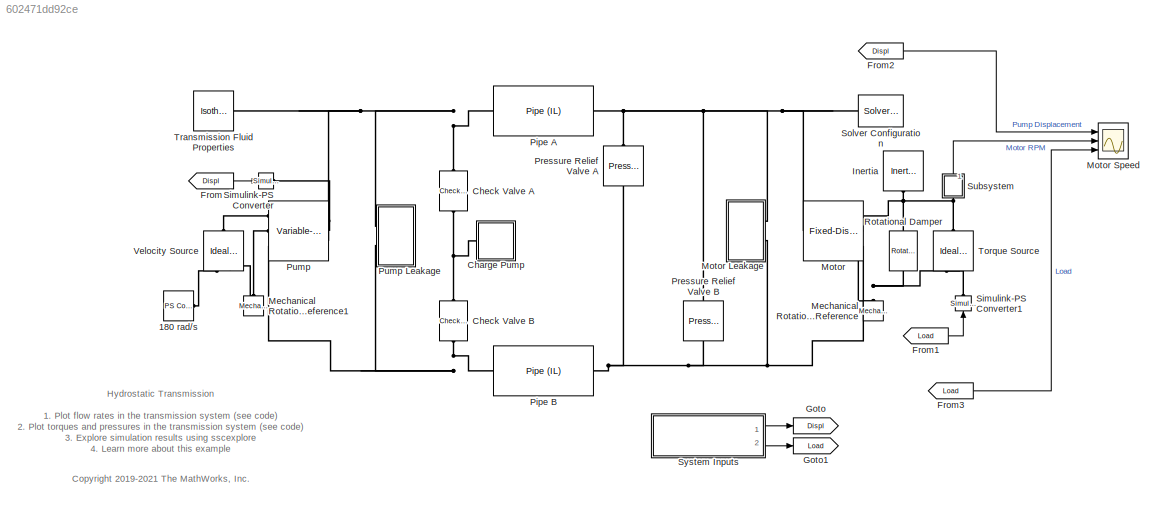
MODEL slx_602471dd92ce
KIND model
CONFIG AbsTol = 1e-3
CONFIG EnableMultiTasking = off
CONFIG FixedStep = auto
CONFIG MaxStep = auto
CONFIG MinStep = auto
CONFIG RelTol = 1e-3
CONFIG SampleTimeConstraint = Unconstrained
CONFIG SolverName = VariableStepAuto
CONFIG StartTime = 0.0
CONFIG StopTime = 30
BLOCK [Reference] 180 rad//s  REF=fl_lib/Physical Signals/Sources/PS Constant
  Ports = [0, 0, 0, 0, 0, 0, 1]
  SourceBlock = fl_lib/Physical Signals/Sources/PS Constant
  SourceProductBaseCode = PW,SS,VE
  SourceType = PS Constant
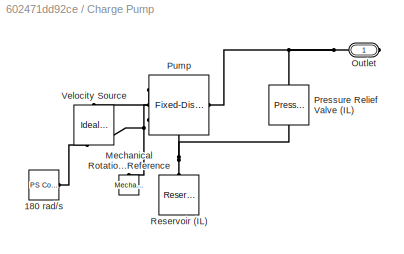
BLOCK [SubSystem] Charge Pump
  Ports = [0, 0, 0, 0, 0, 0, 1]
  RequestExecContextInheritance = off
  Tag = PublishSubsystem
BLOCK [Reference] Charge Pump/180 rad//s  REF=fl_lib/Physical Signals/Sources/PS Constant
  Ports = [0, 0, 0, 0, 0, 0, 1]
  SourceBlock = fl_lib/Physical Signals/Sources/PS Constant
  SourceProductBaseCode = PW,SS,VE
  SourceType = PS Constant
BLOCK [Reference] Charge Pump/Mechanical Rotational Reference  REF=fl_lib/Mechanical/Rotational Elements/Mechanical
Rotational Reference
  NameLocation = right
  Ports = [0, 0, 0, 0, 0, 1]
  SourceBlock = fl_lib/Mechanical/Rotational Elements/Mechanical\nRotational Reference
  SourceProductBaseCode = PW,SS,VE
  SourceType = Mechanical\nRotational Reference
BLOCK [PMIOPort] Charge Pump/Outlet
  Side = Right
BLOCK [Reference] Charge Pump/Pressure Relief Valve (IL)  REF=SimscapeFluids_lib/Isothermal Liquid/Valves & Orifices/Pressure Control
Valves/Pressure Relief
Valve (IL)
  AttributesFormatString = %<p_set_differential> %<p_set_differential_unit>
  NameLocation = right
  Ports = [0, 0, 0, 0, 0, 1, 1]
  SourceBlock = SimscapeFluids_lib/Isothermal Liquid/Valves & Orifices/Pressure Control\nValves/Pressure Relief\nValve (IL)
  SourceProductBaseCode = SH
  SourceType = Pressure Relief\nValve (IL)
BLOCK [Reference] Charge Pump/Pump  REF=SimscapeFluids_lib/Isothermal Liquid/Pumps & Motors/Fixed-Displacement
Pump (IL)
  NameLocation = right
  Ports = [0, 0, 0, 0, 0, 1, 3]
  SourceBlock = SimscapeFluids_lib/Isothermal Liquid/Pumps & Motors/Fixed-Displacement\nPump (IL)
  SourceProductBaseCode = SH
  SourceType = Fixed-Displacement\nPump (IL)
BLOCK [Reference] Charge Pump/Reservoir (IL)  REF=fl_lib/Isothermal Liquid/Elements/Reservoir (IL)
  NameLocation = right
  Ports = [0, 0, 0, 0, 0, 1]
  SourceBlock = fl_lib/Isothermal Liquid/Elements/Reservoir (IL)
  SourceProductBaseCode = PW,SS,VE
  SourceType = Reservoir (IL)
BLOCK [Reference] Charge Pump/Velocity Source  REF=fl_lib/Mechanical/Mechanical Sources/Ideal Angular
Velocity Source
  NameLocation = left
  Ports = [0, 0, 0, 0, 0, 1, 2]
  SourceBlock = fl_lib/Mechanical/Mechanical Sources/Ideal Angular\nVelocity Source
  SourceProductBaseCode = PW,SS,VE
  SourceType = Ideal Angular\nVelocity Source
BLOCK [Reference] Check Valve A  REF=SimscapeFluids_lib/Isothermal Liquid/Valves & Orifices/Directional Control
Valves/Check Valve (IL)
  AttributesFormatString = %<p_crack_differential> %<p_crack_differential_unit>
  NameLocation = right
  Ports = [0, 0, 0, 0, 0, 1, 1]
  SourceBlock = SimscapeFluids_lib/Isothermal Liquid/Valves & Orifices/Directional Control\nValves/Check Valve (IL)
  SourceProductBaseCode = SH
  SourceType = Check Valve (IL)
BLOCK [Reference] Check Valve B  REF=SimscapeFluids_lib/Isothermal Liquid/Valves & Orifices/Directional Control
Valves/Check Valve (IL)
  AttributesFormatString = %<p_crack_differential> %<p_crack_differential_unit>
  NameLocation = right
  Ports = [0, 0, 0, 0, 0, 1, 1]
  SourceBlock = SimscapeFluids_lib/Isothermal Liquid/Valves & Orifices/Directional Control\nValves/Check Valve (IL)
  SourceProductBaseCode = SH
  SourceType = Check Valve (IL)
BLOCK [From] From
  GotoTag = Displ
  TagVisibility = global
BLOCK [From] From1
  GotoTag = Load
  TagVisibility = global
BLOCK [From] From2
  GotoTag = Displ
  TagVisibility = global
BLOCK [From] From3
  GotoTag = Load
  TagVisibility = global
BLOCK [Goto] Goto
  GotoTag = Displ
  TagVisibility = global
BLOCK [Goto] Goto1
  GotoTag = Load
  TagVisibility = global
BLOCK [Reference] Inertia  REF=fl_lib/Mechanical/Rotational Elements/Inertia
  NameLocation = left
  Ports = [0, 0, 0, 0, 0, 1]
  SourceBlock = fl_lib/Mechanical/Rotational Elements/Inertia
  SourceProductBaseCode = PW,SS,VE
  SourceType = Inertia
BLOCK [Reference] Mechanical Rotational Reference  REF=fl_lib/Mechanical/Rotational Elements/Mechanical
Rotational Reference
  NameLocation = right
  Ports = [0, 0, 0, 0, 0, 1]
  SourceBlock = fl_lib/Mechanical/Rotational Elements/Mechanical\nRotational Reference
  SourceProductBaseCode = PW,SS,VE
  SourceType = Mechanical\nRotational Reference
BLOCK [Reference] Mechanical Rotational Reference1  REF=fl_lib/Mechanical/Rotational Elements/Mechanical
Rotational Reference
  NameLocation = right
  Ports = [0, 0, 0, 0, 0, 1]
  SourceBlock = fl_lib/Mechanical/Rotational Elements/Mechanical\nRotational Reference
  SourceProductBaseCode = PW,SS,VE
  SourceType = Mechanical\nRotational Reference
BLOCK [Reference] Motor  REF=SimscapeFluids_lib/Isothermal Liquid/Pumps & Motors/Fixed-Displacement
Motor (IL)
  Ports = [0, 0, 0, 0, 0, 1, 3]
  SourceBlock = SimscapeFluids_lib/Isothermal Liquid/Pumps & Motors/Fixed-Displacement\nMotor (IL)
  SourceProductBaseCode = SH
  SourceType = Fixed-Displacement\nMotor (IL)
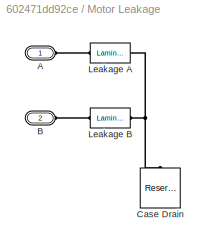
BLOCK [SubSystem] Motor Leakage
  Ports = [0, 0, 0, 0, 0, 2]
  RequestExecContextInheritance = off
  Tag = PublishSubsystem
BLOCK [PMIOPort] Motor Leakage/A
  Side = Left
BLOCK [PMIOPort] Motor Leakage/B
  Port = 2
  Side = Left
BLOCK [Reference] Motor Leakage/Case Drain  REF=fl_lib/Isothermal Liquid/Elements/Reservoir (IL)
  NameLocation = right
  Ports = [0, 0, 0, 0, 0, 1]
  SourceBlock = fl_lib/Isothermal Liquid/Elements/Reservoir (IL)
  SourceProductBaseCode = PW,SS,VE
  SourceType = Reservoir (IL)
BLOCK [Reference] Motor Leakage/Leakage A  REF=fl_lib/Isothermal Liquid/Elements/Laminar Leakage (IL)
  Ports = [0, 0, 0, 0, 0, 1, 1]
  SourceBlock = fl_lib/Isothermal Liquid/Elements/Laminar Leakage (IL)
  SourceProductBaseCode = PW,SS,VE
  SourceType = Laminar Leakage (IL)
BLOCK [Reference] Motor Leakage/Leakage B  REF=fl_lib/Isothermal Liquid/Elements/Laminar Leakage (IL)
  Ports = [0, 0, 0, 0, 0, 1, 1]
  SourceBlock = fl_lib/Isothermal Liquid/Elements/Laminar Leakage (IL)
  SourceProductBaseCode = PW,SS,VE
  SourceType = Laminar Leakage (IL)
BLOCK [Scope] Motor Speed
  Floating = off
  NumInputPorts = 3
  Ports = [3]
  ScopeSpecificationString = Simulink.scopes.TimeScopeBlockCfg('CurrentConfiguration', extmgr.ConfigurationSet(extmgr.Configuration('Core','General UI',true),extmgr.Configuration('Core','Source UI',true),extmgr.Configuration('Sources','WiredSimulink',true),extmgr.Configuration('Visuals','Time Domain',true,'SerializedDisplays',{struct('MinYLimReal','-24.25','MaxYLimReal','38.25','YLabelReal','','MinYLimMag','0.00000','MaxYLimM...<+2751ch>
  Tag = PublishScope
BLOCK [Reference] Pipe A  REF=fl_lib/Isothermal Liquid/Elements/Pipe (IL)
  Ports = [0, 0, 0, 0, 0, 1, 1]
  SourceBlock = fl_lib/Isothermal Liquid/Elements/Pipe (IL)
  SourceProductBaseCode = PW,SS,VE
  SourceType = Pipe (IL)
BLOCK [Reference] Pipe B  REF=fl_lib/Isothermal Liquid/Elements/Pipe (IL)
  Ports = [0, 0, 0, 0, 0, 1, 1]
  SourceBlock = fl_lib/Isothermal Liquid/Elements/Pipe (IL)
  SourceProductBaseCode = PW,SS,VE
  SourceType = Pipe (IL)
BLOCK [Reference] Pressure Relief Valve A  REF=SimscapeFluids_lib/Isothermal Liquid/Valves & Orifices/Pressure Control
Valves/Pressure Relief
Valve (IL)
  AttributesFormatString = %<p_set_differential> %<p_set_differential_unit>
  NameLocation = right
  Ports = [0, 0, 0, 0, 0, 1, 1]
  SourceBlock = SimscapeFluids_lib/Isothermal Liquid/Valves & Orifices/Pressure Control\nValves/Pressure Relief\nValve (IL)
  SourceProductBaseCode = SH
  SourceType = Pressure Relief\nValve (IL)
BLOCK [Reference] Pressure Relief Valve B  REF=SimscapeFluids_lib/Isothermal Liquid/Valves & Orifices/Pressure Control
Valves/Pressure Relief
Valve (IL)
  AttributesFormatString = %<p_set_differential> %<p_set_differential_unit>
  NameLocation = left
  Ports = [0, 0, 0, 0, 0, 1, 1]
  SourceBlock = SimscapeFluids_lib/Isothermal Liquid/Valves & Orifices/Pressure Control\nValves/Pressure Relief\nValve (IL)
  SourceProductBaseCode = SH
  SourceType = Pressure Relief\nValve (IL)
BLOCK [Reference] Pump  REF=SimscapeFluids_lib/Isothermal Liquid/Pumps & Motors/Variable-Displacement
Pump (IL)
  Ports = [0, 0, 0, 0, 0, 2, 3]
  SourceBlock = SimscapeFluids_lib/Isothermal Liquid/Pumps & Motors/Variable-Displacement\nPump (IL)
  SourceProductBaseCode = SH
  SourceType = Variable-Displacement\nPump (IL)
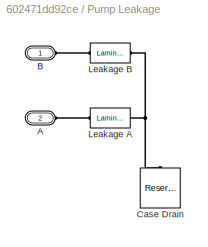
BLOCK [SubSystem] Pump Leakage
  Ports = [0, 0, 0, 0, 0, 2]
  RequestExecContextInheritance = off
  Tag = PublishSubsystem
BLOCK [PMIOPort] Pump Leakage/A
  Port = 2
  Side = Left
BLOCK [PMIOPort] Pump Leakage/B
  Side = Left
BLOCK [Reference] Pump Leakage/Case Drain  REF=fl_lib/Isothermal Liquid/Elements/Reservoir (IL)
  NameLocation = right
  Ports = [0, 0, 0, 0, 0, 1]
  SourceBlock = fl_lib/Isothermal Liquid/Elements/Reservoir (IL)
  SourceProductBaseCode = PW,SS,VE
  SourceType = Reservoir (IL)
BLOCK [Reference] Pump Leakage/Leakage A  REF=fl_lib/Isothermal Liquid/Elements/Laminar Leakage (IL)
  Ports = [0, 0, 0, 0, 0, 1, 1]
  SourceBlock = fl_lib/Isothermal Liquid/Elements/Laminar Leakage (IL)
  SourceProductBaseCode = PW,SS,VE
  SourceType = Laminar Leakage (IL)
BLOCK [Reference] Pump Leakage/Leakage B  REF=fl_lib/Isothermal Liquid/Elements/Laminar Leakage (IL)
  Ports = [0, 0, 0, 0, 0, 1, 1]
  SourceBlock = fl_lib/Isothermal Liquid/Elements/Laminar Leakage (IL)
  SourceProductBaseCode = PW,SS,VE
  SourceType = Laminar Leakage (IL)
BLOCK [Reference] Rotational Damper  REF=fl_lib/Mechanical/Rotational Elements/Rotational Damper
  NameLocation = left
  Ports = [0, 0, 0, 0, 0, 1, 1]
  SourceBlock = fl_lib/Mechanical/Rotational Elements/Rotational Damper
  SourceProductBaseCode = PW,SS,VE
  SourceType = Rotational Damper
BLOCK [Reference] Simulink-PS Converter  REF=nesl_utility/Simulink-PS
Converter
  Ports = [1, 0, 0, 0, 0, 0, 1]
  SourceBlock = nesl_utility/Simulink-PS\nConverter
  SourceProductBaseCode = SS,PW,VE
  SourceType = Simulink-PS\nConverter
BLOCK [Reference] Simulink-PS Converter1  REF=nesl_utility/Simulink-PS
Converter
  NameLocation = right
  Ports = [1, 0, 0, 0, 0, 0, 1]
  SourceBlock = nesl_utility/Simulink-PS\nConverter
  SourceProductBaseCode = SS,PW,VE
  SourceType = Simulink-PS\nConverter
BLOCK [Reference] Solver Configuration  REF=nesl_utility/Solver
Configuration
  Ports = [0, 0, 0, 0, 0, 0, 1]
  SourceBlock = nesl_utility/Solver\nConfiguration
  SourceProductBaseCode = SS,PW,VE
  SourceType = Solver\nConfiguration
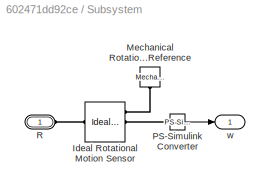
BLOCK [SubSystem] Subsystem
  NameLocation = right
  Ports = [0, 1, 0, 0, 0, 1]
  RequestExecContextInheritance = off
BLOCK [Reference] Subsystem/Ideal Rotational Motion Sensor  REF=fl_lib/Mechanical/Mechanical Sensors/Ideal Rotational
Motion Sensor
  Ports = [0, 0, 0, 0, 0, 1, 3]
  SourceBlock = fl_lib/Mechanical/Mechanical Sensors/Ideal Rotational\nMotion Sensor
  SourceProductBaseCode = PW,SS,VE
  SourceType = Ideal Rotational\nMotion Sensor
BLOCK [Reference] Subsystem/Mechanical Rotational Reference  REF=fl_lib/Mechanical/Rotational Elements/Mechanical
Rotational Reference
  NameLocation = left
  Ports = [0, 0, 0, 0, 0, 1]
  SourceBlock = fl_lib/Mechanical/Rotational Elements/Mechanical\nRotational Reference
  SourceProductBaseCode = PW,SS,VE
  SourceType = Mechanical\nRotational Reference
BLOCK [Reference] Subsystem/PS-Simulink Converter  REF=nesl_utility/PS-Simulink
Converter
  Ports = [0, 1, 0, 0, 0, 1]
  SourceBlock = nesl_utility/PS-Simulink\nConverter
  SourceProductBaseCode = SS,PW,VE
  SourceType = PS-Simulink\nConverter
BLOCK [PMIOPort] Subsystem/R
  Side = Left
BLOCK [Outport] Subsystem/w
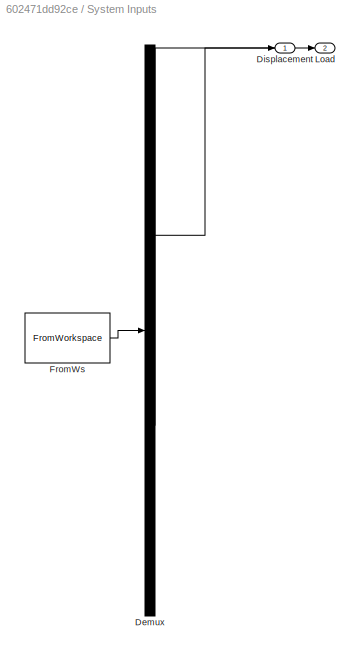
BLOCK [SubSystem] System Inputs
  ClipboardFcn = sigbuilder_block('clipboard');
  CloseFcn = sigbuilder_block('close');
  ContinueFcn = sigbuilder_block('continue');
  CopyFcn = sigbuilder_block('copy');
  DeleteFcn = sigbuilder_block('delete');
  LoadFcn = sigbuilder_block('load',[298.5 312.75 550.5 399.75 ]);
  MaskHideContents = on
  ModelCloseFcn = sigbuilder_block('modelClose');
  NameChangeFcn = sigbuilder_block('namechange');
  OpenFcn = sigbuilder_block('open',[298.5 312.75 550.5 399.75 ]);
  PauseFcn = sigbuilder_block('pause');
  Ports = [0, 2]
  PreSaveFcn = sigbuilder_block('preSave');
  RequestExecContextInheritance = off
  StartFcn = sigbuilder_block('start');
  StopFcn = sigbuilder_block('stop');
  Tag = STV Subsys
BLOCK [Demux] System Inputs/Demux
  DisplayOption = none
  Outputs = 2
  Ports = [1, 2]
  Tag = STV Demux
BLOCK [Outport] System Inputs/Displacement
  Tag = STV Outport
BLOCK [FromWorkspace] System Inputs/FromWs
  Tag = STV FromWs
  VariableName = tuvar
BLOCK [Outport] System Inputs/Load
  Port = 2
  Tag = STV Outport
BLOCK [Reference] Torque Source  REF=fl_lib/Mechanical/Mechanical Sources/Ideal Torque Source
  NameLocation = right
  Ports = [0, 0, 0, 0, 0, 1, 2]
  SourceBlock = fl_lib/Mechanical/Mechanical Sources/Ideal Torque Source
  SourceProductBaseCode = PW,SS,VE
  SourceType = Ideal Torque Source
BLOCK [Reference] Transmission Fluid Properties  REF=fl_lib/Isothermal Liquid/Utilities/Isothermal Liquid
Properties (IL)
  Ports = [0, 0, 0, 0, 0, 0, 1]
  SourceBlock = fl_lib/Isothermal Liquid/Utilities/Isothermal Liquid\nProperties (IL)
  SourceProductBaseCode = PW,SS,VE
  SourceType = Isothermal Liquid\nProperties (IL)
BLOCK [Reference] Velocity Source  REF=fl_lib/Mechanical/Mechanical Sources/Ideal Angular
Velocity Source
  NameLocation = left
  Ports = [0, 0, 0, 0, 0, 1, 2]
  SourceBlock = fl_lib/Mechanical/Mechanical Sources/Ideal Angular\nVelocity Source
  SourceProductBaseCode = PW,SS,VE
  SourceType = Ideal Angular\nVelocity Source
ANNOTATION (root): 1. Plot flow rates in the transmission system ( see code ) 2. Plot torques and pressures in the transmission system ( see code ) 3. Explore simulation results using sscexplore 4. Learn more about this example
ANNOTATION (root): <copyright redacted>
ANNOTATION (root): Hydrostatic Transmission
LINE From1:1 -> Simulink-PS Converter1:1
LINE From2:1 -> Motor Speed:1
LINE From3:1 -> Motor Speed:3
LINE From:1 -> Simulink-PS Converter:1
LINE Subsystem/PS-Simulink Converter:1 -> Subsystem/w:1
LINE Subsystem:1 -> Motor Speed:2
LINE System Inputs:1 -> Goto:1
LINE System Inputs:2 -> Goto1:1
PLINE 180 rad//s:RConn1 -- Velocity Source:RConn1
PLINE Charge Pump/180 rad//s:RConn1 -- Charge Pump/Velocity Source:RConn1
PNET net1: Charge Pump/Mechanical Rotational Reference:LConn1 -- Charge Pump/Pump:RConn2 -- Charge Pump/Velocity Source:RConn2
PNET net2: Charge Pump/Outlet:RConn1 -- Charge Pump/Pressure Relief Valve (IL):LConn1 -- Charge Pump/Pump:LConn1
PNET net3: Charge Pump/Pressure Relief Valve (IL):RConn1 -- Charge Pump/Pump:RConn3 -- Charge Pump/Reservoir (IL):LConn1
PLINE Charge Pump/Pump:RConn1 -- Charge Pump/Velocity Source:LConn1
PNET net4: Charge Pump:RConn1 -- Check Valve A:LConn1 -- Check Valve B:LConn1
PNET net5: Check Valve A:RConn1 -- Pipe A:LConn1 -- Pump Leakage:LConn1 -- Pump:LConn2 -- Transmission Fluid Properties:RConn1
PNET net6: Check Valve B:RConn1 -- Pipe B:LConn1 -- Pump Leakage:LConn2 -- Pump:RConn3
PNET net7: Inertia:LConn1 -- Motor:RConn1 -- Rotational Damper:LConn1 -- Subsystem:LConn1 -- Torque Source:LConn1
PNET net8: Mechanical Rotational Reference1:LConn1 -- Pump:RConn2 -- Velocity Source:RConn2
PNET net9: Mechanical Rotational Reference:LConn1 -- Motor:RConn2 -- Rotational Damper:RConn1 -- Torque Source:RConn2
PLINE Motor Leakage/A:RConn1 -- Motor Leakage/Leakage A:LConn1
PLINE Motor Leakage/B:RConn1 -- Motor Leakage/Leakage B:LConn1
PNET net10: Motor Leakage/Case Drain:LConn1 -- Motor Leakage/Leakage A:RConn1 -- Motor Leakage/Leakage B:RConn1
PNET net11: Motor Leakage:LConn1 -- Motor:LConn1 -- Pipe A:RConn1 -- Pressure Relief Valve A:LConn1 -- Pressure Relief Valve B:RConn1 -- Solver Configuration:RConn1
PNET net12: Motor Leakage:LConn2 -- Motor:RConn3 -- Pipe B:RConn1 -- Pressure Relief Valve A:RConn1 -- Pressure Relief Valve B:LConn1
PLINE Pump Leakage/A:RConn1 -- Pump Leakage/Leakage A:LConn1
PLINE Pump Leakage/B:RConn1 -- Pump Leakage/Leakage B:LConn1
PNET net13: Pump Leakage/Case Drain:LConn1 -- Pump Leakage/Leakage A:RConn1 -- Pump Leakage/Leakage B:RConn1
PLINE Pump:LConn1 -- Simulink-PS Converter:RConn1
PLINE Pump:RConn1 -- Velocity Source:LConn1
PLINE Simulink-PS Converter1:RConn1 -- Torque Source:RConn1
PLINE Subsystem/Ideal Rotational Motion Sensor:LConn1 -- Subsystem/R:RConn1
PLINE Subsystem/Ideal Rotational Motion Sensor:RConn1 -- Subsystem/Mechanical Rotational Reference:LConn1
PLINE Subsystem/Ideal Rotational Motion Sensor:RConn2 -- Subsystem/PS-Simulink Converter:LConn1
note: PNET lines group multi-terminal physical nets as a canonical sorted terminal list (undirected conserving connections); 2-terminal nets keep the pairwise PLINE form
